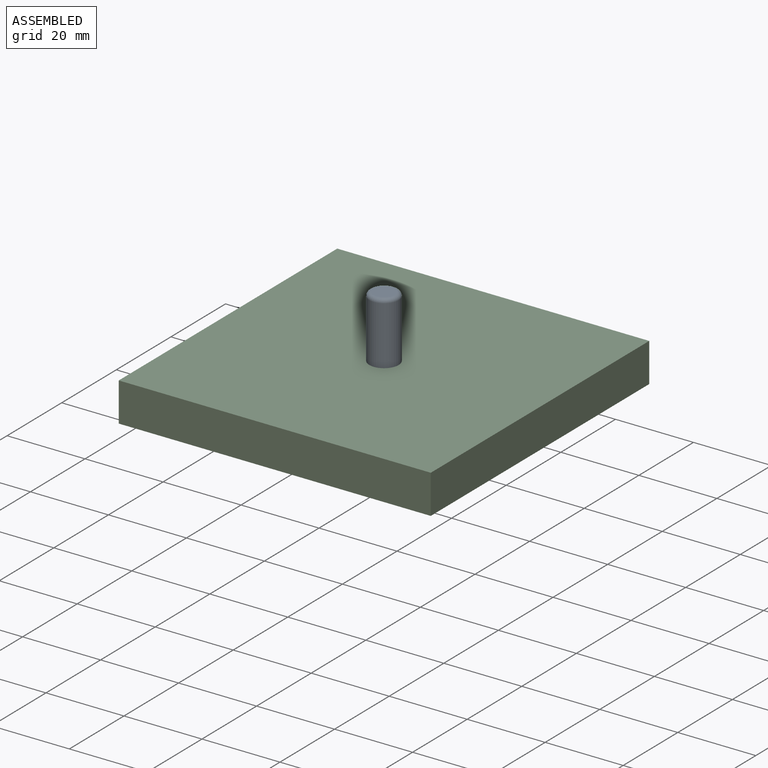
[diagram: assembled view]
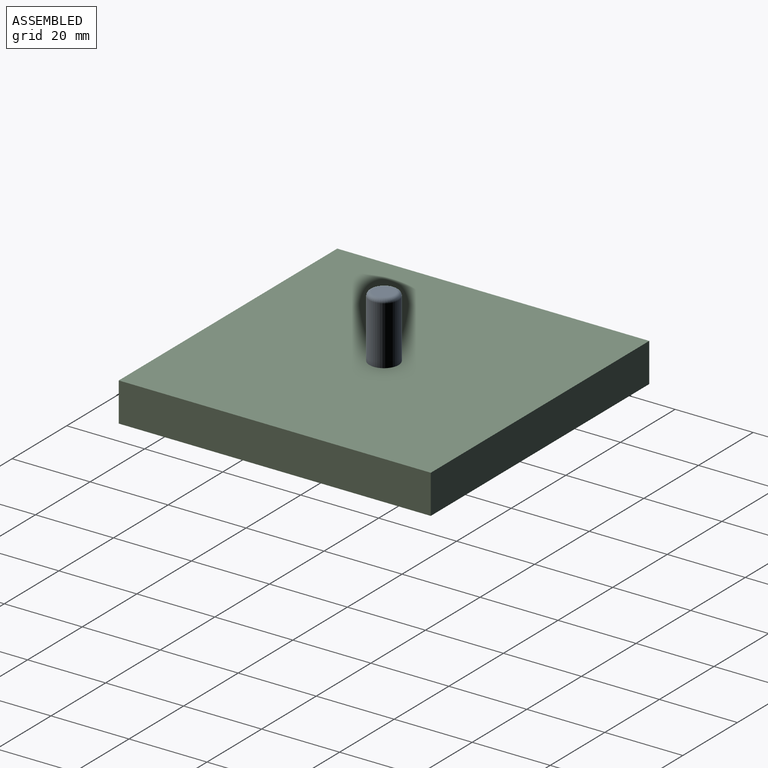
[diagram: assembled view, second angle]
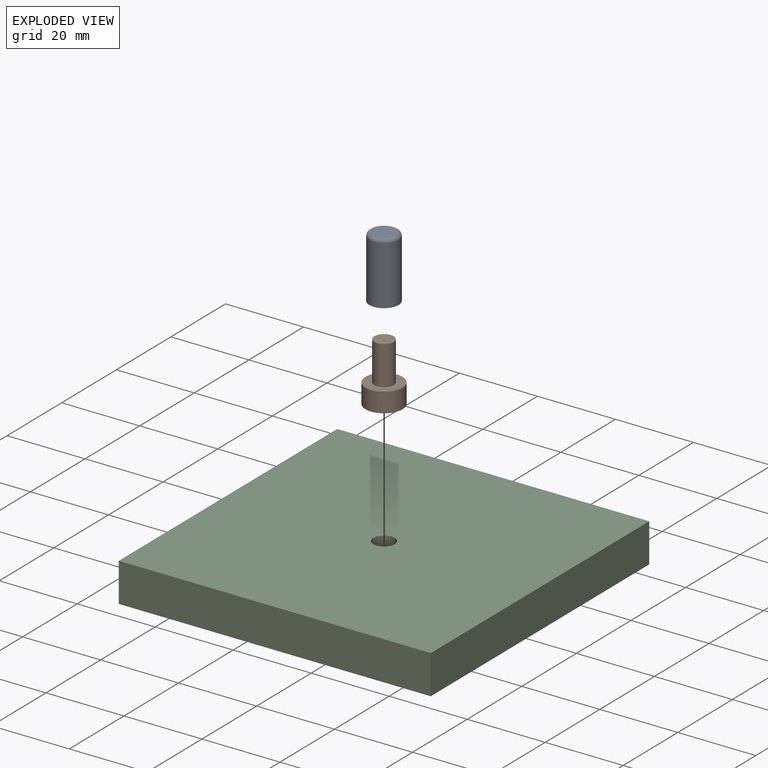
[diagram: exploded view]
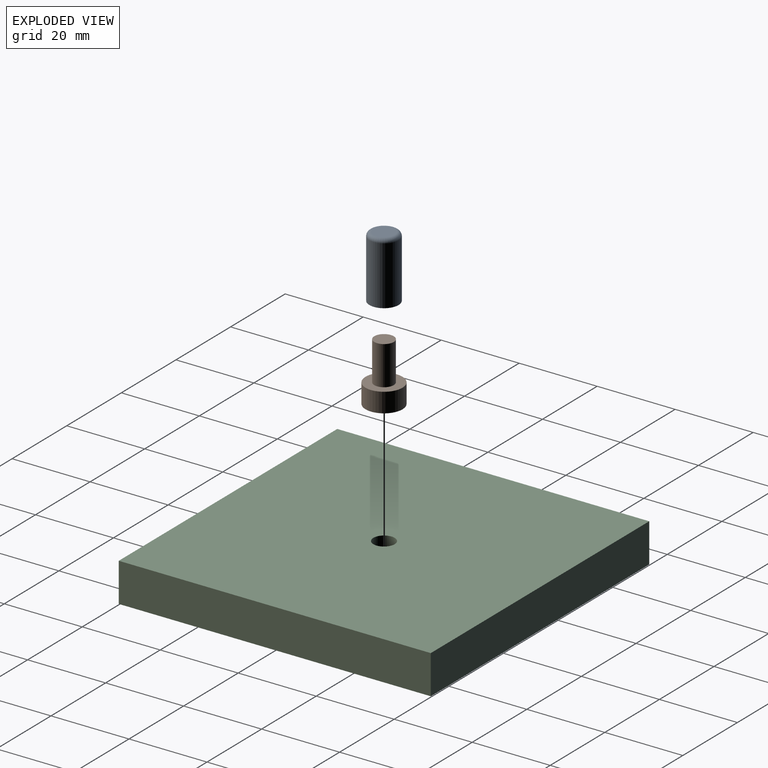
[diagram: exploded view, second angle]
ASSEMBLY  parts=3 mates=2
PART A: 6 faces, bbox 8.1x16x8.1 mm
  f0: cylinder r=3.75mm len=15mm, axis (0,1,0), area 353.4mm2, adj f2,f3
  f1: plane 5.5x5.5mm, normal (0,-1,0), area 23.8mm2, adj f3
  f2: plane 7.5x7.5mm, normal (0,1,0), area 30.3mm2, adj f0,f5
  f3: torus R=2.75mm, axis (0,-1,0), area 33.4mm2, adj f0,f1
  f4: cone r=0mm half-angle=59deg, axis (0,1,0), area 16.2mm2, adj f5
  f5: cylinder r=2.1mm len=12.4mm, axis (0,1,0), area 163.6mm2, adj f2,f4
PART B: 12 faces, bbox 9.5x15x9.5 mm
  f0: cylinder r=4.75mm len=9.5mm, axis (0,1,0), area 149.2mm2, adj f1,f2
  f1: plane 9.5x9.5mm, normal (0,-1,0), area 42.5mm2, adj f0,f5,f6,f7,f8,f9,f10
  f2: plane 9.5x9.5mm, normal (0,1,0), area 51.2mm2, adj f0,f3
  f3: cylinder r=2.5mm len=10mm, axis (0,-1,0), area 157.1mm2, adj f2,f4
  f4: plane 5x5mm, normal (0,1,0), area 19.6mm2, adj f3
  f5: plane 3x2.86mm, normal (0.87,0,0.5), area 9.9mm2, adj f1,f6,f10,f11
  f6: plane 3.31x3mm, normal (0,0,1), area 9.9mm2, adj f1,f5,f7,f11
  f7: plane 3x2.86mm, normal (-0.87,0,0.5), area 9.9mm2, adj f1,f6,f8,f11
  f8: plane 3x2.86mm, normal (-0.87,0,-0.5), area 9.9mm2, adj f1,f7,f9,f11
  f9: plane 3.31x3mm, normal (0,0,-1), area 9.9mm2, adj f1,f8,f10,f11
  f10: plane 3x2.86mm, normal (0.87,0,-0.5), area 9.9mm2, adj f1,f5,f9,f11
  f11: plane 6.61x5.73mm, normal (0,-1,0), area 28.4mm2, adj f5,f6,f7,f8,f9,f10
PART C: 9 faces, bbox 80x10x80 mm
  f0: plane 80x10mm, normal (0,0,1), area 800mm2, adj f1,f3,f4,f5
  f1: plane 80x10mm, normal (-1,0,0), area 800mm2, adj f0,f2,f4,f5
  f2: plane 80x10mm, normal (0,0,-1), area 800mm2, adj f1,f3,f4,f5
  f3: plane 80x10mm, normal (1,0,0), area 800mm2, adj f0,f2,f4,f5
  f4: plane 80x80mm, normal (0,-1,0), area 6325.3mm2, adj f0,f1,f2,f3,f8
  f5: plane 80x80mm, normal (0,1,0), area 6376.2mm2, adj f0,f1,f2,f3,f6
  f6: cylinder r=2.75mm len=5.5mm, axis (0,-1,0), area 86.4mm2, adj f5,f7
  f7: plane 9.75x9.75mm, normal (0,-1,0), area 50.9mm2, adj f6,f8
  f8: cylinder r=4.88mm len=9.75mm, axis (0,-1,0), area 153.2mm2, adj f4,f7
PLACE A rot(axis=(-1,0,0),90deg) t=(0.2,-36.46,74.55)mm
PLACE B rot(axis=(1,0,0),90deg) t=(-23.8,-12.71,69.55)mm
PLACE C rot(axis=(1,0,0),90deg) t=(-28.26,-9.06,74.55)mm
MATE fastened B.f0 <-> C.f6  axis (0,0,1) through (-30.67,-18.09,69.55)mm
MATE fastened A.f0 <-> C.f6  axis (0,0,-1) through (-30.67,-18.09,74.55)mm
